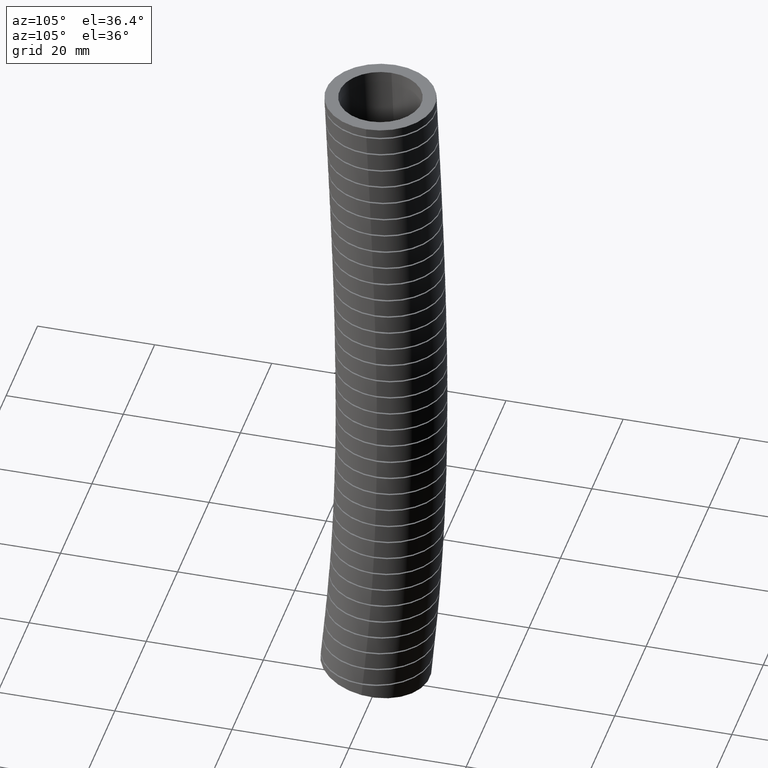
[diagram: clean part render]
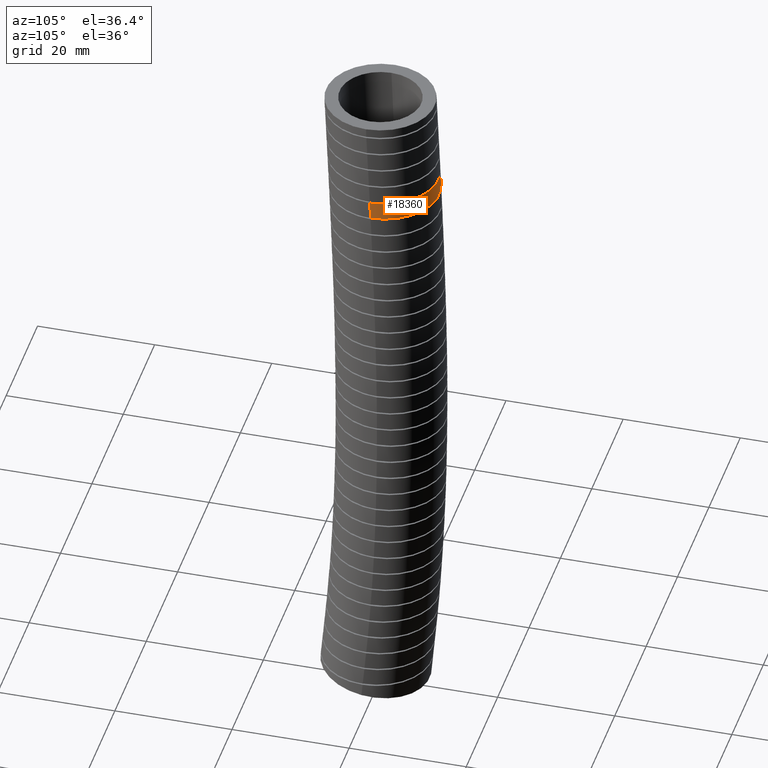
[diagram: same view with one face highlighted and labeled with its STEP entity id]
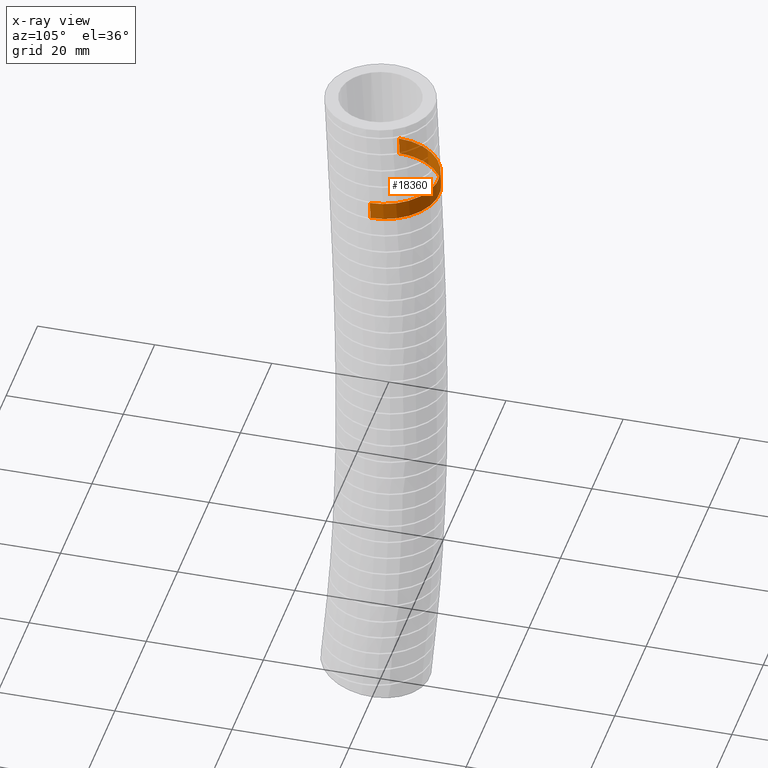
[diagram: x-ray of the same camera — body ghosted, the highlighted face saturated]
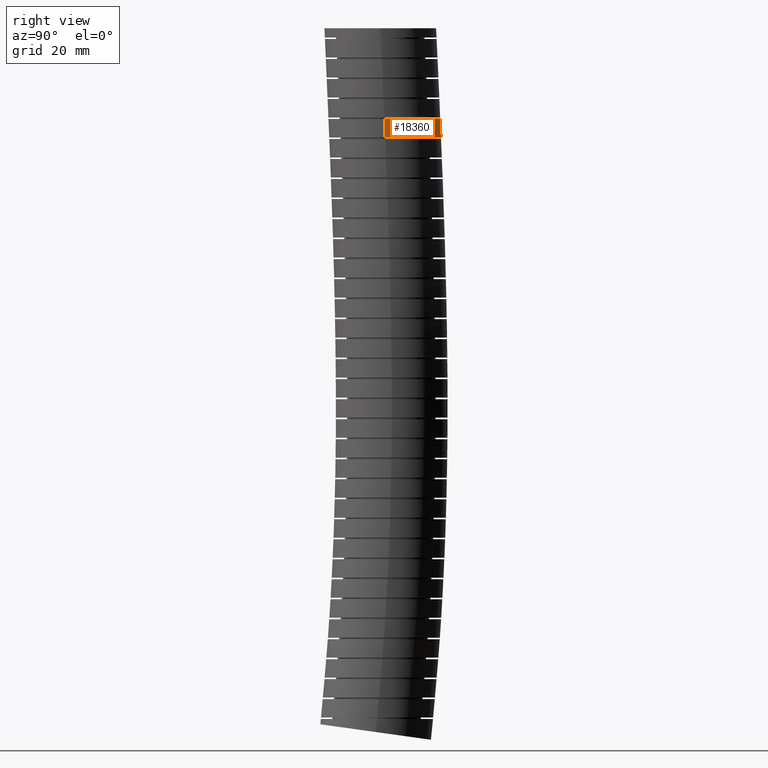
[diagram: same view with one face highlighted and labeled with its STEP entity id]
A machine part, auxiliary view. The second image highlights one B-rep face of the part: STEP entity #18360.
The next image is the same camera in x-ray: the body ghosted, the highlighted face saturated — about 25% of this face is hidden behind the body in this view.
A second angle (right view) of the same face is appended — the face is thin or edge-on in the first view.
In plain terms, the highlighted face is a freeform B-spline surface patch.
Its self-contained STEP definition (entity closure, byte-faithful):
#908 = VERTEX_POINT ( 'NONE', #7255 ) ;
#909 = VERTEX_POINT ( 'NONE', #7256 ) ;
#910 = EDGE_CURVE ( 'NONE', #912, #908, #7359, .T. ) ;
#912 = VERTEX_POINT ( 'NONE', #7354 ) ;
#916 = VERTEX_POINT ( 'NONE', #7377 ) ;
#6418 = EDGE_CURVE ( 'NONE', #909, #916, #10500, .T. ) ;
#7255 = CARTESIAN_POINT ( 'NONE',  ( -0.3649999999999999900, 0.03126465623229612200, -0.7093733101619895700 ) ) ;
#7256 = CARTESIAN_POINT ( 'NONE',  ( 0.3649999999999999900, 0.02621121832395991900, -0.5894886608622760300 ) ) ;
#7354 = CARTESIAN_POINT ( 'NONE',  ( -0.3650000000000000500, 0.02621121832395614100, -0.5894886608622315100 ) ) ;
#7355 = CARTESIAN_POINT ( 'NONE',  ( -0.3649999999999999900, 0.03126465623229612200, -0.7093733101619895700 ) ) ;
#7356 = CARTESIAN_POINT ( 'NONE',  ( -0.3649999999999999900, 0.02960436334437375700, -0.6694127585951066300 ) ) ;
#7357 = CARTESIAN_POINT ( 'NONE',  ( -0.3649999999999999900, 0.02791844007536636900, -0.6294511492345646900 ) ) ;
#7358 = CARTESIAN_POINT ( 'NONE',  ( -0.3650000000000000500, 0.02621121832395614100, -0.5894886608622315100 ) ) ;
#7359 = B_SPLINE_CURVE_WITH_KNOTS ( 'NONE', 3,
 ( #7358, #7357, #7356, #7355 ),
 .UNSPECIFIED., .F., .F.,
 ( 4, 4 ),
 ( 0.1287193705377788500, 0.1548996054933428100 ),
 .UNSPECIFIED. ) ;
#7377 = CARTESIAN_POINT ( 'NONE',  ( 0.3649999999999999900, 0.03126465623230066000, -0.7093733101620444100 ) ) ;
#10500 = B_SPLINE_CURVE_WITH_KNOTS ( 'NONE', 3,
 ( #10550, #10549, #10548, #10547 ),
 .UNSPECIFIED., .F., .F.,
 ( 4, 4 ),
 ( 0.1287193705377885600, 0.1548996054933548200 ),
 .UNSPECIFIED. ) ;
#10547 = CARTESIAN_POINT ( 'NONE',  ( 0.3649999999999999900, 0.03126465623230066000, -0.7093733101620444100 ) ) ;
#10548 = CARTESIAN_POINT ( 'NONE',  ( 0.3649999999999999900, 0.02960436334437589100, -0.6694127585951581400 ) ) ;
#10549 = CARTESIAN_POINT ( 'NONE',  ( 0.3649999999999999900, 0.02791844007536837000, -0.6294511492346126500 ) ) ;
#10550 = CARTESIAN_POINT ( 'NONE',  ( 0.3649999999999999900, 0.02621121832395991900, -0.5894886608622760300 ) ) ;
#15847 = FACE_OUTER_BOUND ( 'NONE', #18358, .T. ) ;
#15886 =( BOUNDED_SURFACE ( )  B_SPLINE_SURFACE ( 3, 3, ( 
 ( #15930, #15929, #15928, #15927, #15926, #15925 ),
 ( #15924, #15923, #15922, #15921, #15920, #15919 ),
 ( #15918, #15917, #15916, #15915, #15914, #15913 ),
 ( #15912, #15911, #15910, #15909, #15908, #15907 ),
 ( #15906, #15905, #15904, #15903, #15902, #15901 ),
 ( #15900, #15899, #15898, #15897, #15896, #15895 ),
 ( #15894, #15893, #15966, #15965, #15964, #15963 ) ),
 .UNSPECIFIED., .F., .F., .F. ) 
 B_SPLINE_SURFACE_WITH_KNOTS ( ( 4, 3, 4 ),
 ( 4, 1, 1, 4 ),
 ( 0.0000000000000000000, 0.5000000000000000000, 1.000000000000000000 ),
 ( 0.0000000000000000000, 0.5600000000000000500, 0.8748558840421495300, 1.000000000000000000 ),
 .UNSPECIFIED. ) 
 GEOMETRIC_REPRESENTATION_ITEM ( )  RATIONAL_B_SPLINE_SURFACE ( (
 ( 1.000000000000000000, 1.000000000000000000, 1.000000000000000000, 1.000000000000000000, 1.000000000000000000, 1.000000000000000000),
 ( 0.3333333333333333100, 0.3333333333333333100, 0.3333333333333333100, 0.3333333333333333100, 0.3333333333333333100, 0.3333333333333333100),
 ( 0.3333333333333333100, 0.3333333333333333100, 0.3333333333333333100, 0.3333333333333333100, 0.3333333333333333100, 0.3333333333333333100),
 ( 1.000000000000000000, 1.000000000000000000, 1.000000000000000000, 1.000000000000000000, 1.000000000000000000, 1.000000000000000000),
 ( 0.3333333333333333100, 0.3333333333333333100, 0.3333333333333333100, 0.3333333333333333100, 0.3333333333333333100, 0.3333333333333333100),
 ( 0.3333333333333333100, 0.3333333333333333100, 0.3333333333333333100, 0.3333333333333333100, 0.3333333333333333100, 0.3333333333333333100),
 ( 1.000000000000000000, 1.000000000000000000, 1.000000000000000000, 1.000000000000000000, 1.000000000000000000, 1.000000000000000000) ) ) 
 REPRESENTATION_ITEM ( '' )  SURFACE ( )  );
#15893 = CARTESIAN_POINT ( 'NONE',  ( 0.3649999999999999900, 0.03875770978777286900, -0.8548973581307141000 ) ) ;
#15894 = CARTESIAN_POINT ( 'NONE',  ( 0.3649999999999999900, 0.0000000000000000000, 0.0000000000000000000 ) ) ;
#15895 = CARTESIAN_POINT ( 'NONE',  ( 0.3649999999999999400, 0.6930017825107170900, -4.670838596213580600 ) ) ;
#15896 = CARTESIAN_POINT ( 'NONE',  ( 0.3649999999999999400, 0.7114620207083701700, -4.473997150209484600 ) ) ;
#15897 = CARTESIAN_POINT ( 'NONE',  ( 0.3649999999999999400, 0.7763672281549830500, -3.781913183025811700 ) ) ;
#15898 = CARTESIAN_POINT ( 'NONE',  ( 0.3649999999999999400, 0.8301834959050966600, -2.210314633867584100 ) ) ;
#15899 = CARTESIAN_POINT ( 'NONE',  ( 0.3649999999999999400, 0.7690999251777161900, -0.8626484434652025300 ) ) ;
#15900 = CARTESIAN_POINT ( 'NONE',  ( 0.3649999999999999400, 0.7299999999999998700, 0.0000000000000000000 ) ) ;
#15901 = CARTESIAN_POINT ( 'NONE',  ( -0.3649999999999999400, 0.6930017825107170900, -4.670838596213580600 ) ) ;
#15902 = CARTESIAN_POINT ( 'NONE',  ( -0.3649999999999998800, 0.7114620207083701700, -4.473997150209484600 ) ) ;
#15903 = CARTESIAN_POINT ( 'NONE',  ( -0.3649999999999998800, 0.7763672281549830500, -3.781913183025811700 ) ) ;
#15904 = CARTESIAN_POINT ( 'NONE',  ( -0.3649999999999999400, 0.8301834959050966600, -2.210314633867584100 ) ) ;
#15905 = CARTESIAN_POINT ( 'NONE',  ( -0.3649999999999999400, 0.7690999251777161900, -0.8626484434652025300 ) ) ;
#15906 = CARTESIAN_POINT ( 'NONE',  ( -0.3649999999999999400, 0.7299999999999998700, 0.0000000000000000000 ) ) ;
#15907 = CARTESIAN_POINT ( 'NONE',  ( -0.3649999999999999900, -0.02999999999999997100, -4.570000000000000300 ) ) ;
#15908 = CARTESIAN_POINT ( 'NONE',  ( -0.3649999999999999900, -0.01223079473036812700, -4.380045502980629600 ) ) ;
#15909 = CARTESIAN_POINT ( 'NONE',  ( -0.3649999999999999900, 0.05024477800268267700, -3.712175679067584200 ) ) ;
#15910 = CARTESIAN_POINT ( 'NONE',  ( -0.3649999999999999400, 0.09930665703747128300, -2.190454472439184600 ) ) ;
#15911 = CARTESIAN_POINT ( 'NONE',  ( -0.3649999999999999900, 0.03875770978777290400, -0.8548973581307141000 ) ) ;
#15912 = CARTESIAN_POINT ( 'NONE',  ( -0.3649999999999999900, 4.469960816887839200E-017, 0.0000000000000000000 ) ) ;
#15913 = CARTESIAN_POINT ( 'NONE',  ( -0.3650000000000001000, -0.7530017825107172500, -4.469161403786418200 ) ) ;
#15914 = CARTESIAN_POINT ( 'NONE',  ( -0.3650000000000001000, -0.7359236101691065700, -4.286093855751774500 ) ) ;
#15915 = CARTESIAN_POINT ( 'NONE',  ( -0.3650000000000001000, -0.6758776721496178000, -3.642438175109354900 ) ) ;
#15916 = CARTESIAN_POINT ( 'NONE',  ( -0.3650000000000001000, -0.6315701818301539000, -2.170594311010786800 ) ) ;
#15917 = CARTESIAN_POINT ( 'NONE',  ( -0.3650000000000001000, -0.6915845056021706600, -0.8471462727962260100 ) ) ;
#15918 = CARTESIAN_POINT ( 'NONE',  ( -0.3650000000000001000, -0.7299999999999998700, 0.0000000000000000000 ) ) ;
#15919 = CARTESIAN_POINT ( 'NONE',  ( 0.3649999999999999400, -0.7530017825107172500, -4.469161403786418200 ) ) ;
#15920 = CARTESIAN_POINT ( 'NONE',  ( 0.3649999999999999400, -0.7359236101691065700, -4.286093855751774500 ) ) ;
#15921 = CARTESIAN_POINT ( 'NONE',  ( 0.3649999999999999400, -0.6758776721496178000, -3.642438175109354900 ) ) ;
#15922 = CARTESIAN_POINT ( 'NONE',  ( 0.3649999999999999400, -0.6315701818301539000, -2.170594311010786800 ) ) ;
#15923 = CARTESIAN_POINT ( 'NONE',  ( 0.3649999999999999400, -0.6915845056021706600, -0.8471462727962260100 ) ) ;
#15924 = CARTESIAN_POINT ( 'NONE',  ( 0.3649999999999999400, -0.7299999999999998700, 0.0000000000000000000 ) ) ;
#15925 = CARTESIAN_POINT ( 'NONE',  ( 0.3649999999999999900, -0.03000000000000001300, -4.570000000000000300 ) ) ;
#15926 = CARTESIAN_POINT ( 'NONE',  ( 0.3649999999999999900, -0.01223079473036816800, -4.380045502980629600 ) ) ;
#15927 = CARTESIAN_POINT ( 'NONE',  ( 0.3649999999999999900, 0.05024477800268264300, -3.712175679067584200 ) ) ;
#15928 = CARTESIAN_POINT ( 'NONE',  ( 0.3649999999999999400, 0.09930665703747126900, -2.190454472439184600 ) ) ;
#15929 = CARTESIAN_POINT ( 'NONE',  ( 0.3649999999999999900, 0.03875770978777286900, -0.8548973581307141000 ) ) ;
#15930 = CARTESIAN_POINT ( 'NONE',  ( 0.3649999999999999900, 0.0000000000000000000, 0.0000000000000000000 ) ) ;
#15963 = CARTESIAN_POINT ( 'NONE',  ( 0.3649999999999999900, -0.03000000000000001300, -4.570000000000000300 ) ) ;
#15964 = CARTESIAN_POINT ( 'NONE',  ( 0.3649999999999999900, -0.01223079473036816800, -4.380045502980629600 ) ) ;
#15965 = CARTESIAN_POINT ( 'NONE',  ( 0.3649999999999999900, 0.05024477800268264300, -3.712175679067584200 ) ) ;
#15966 = CARTESIAN_POINT ( 'NONE',  ( 0.3649999999999999400, 0.09930665703747126900, -2.190454472439184600 ) ) ;
#15967 = CARTESIAN_POINT ( 'NONE',  ( 0.02375752942135493000, 0.3912202892086623600, -0.5894886608622312800 ) ) ;
#15968 = CARTESIAN_POINT ( 'NONE',  ( -0.02437183755444926100, 0.3911797886749993600, -0.5894886608622315100 ) ) ;
#15969 = CARTESIAN_POINT ( 'NONE',  ( -0.04806125841514628100, 0.3888032031406844500, -0.5894886608622312800 ) ) ;
#15970 = CARTESIAN_POINT ( 'NONE',  ( -0.08305179981515786700, 0.3818250352163292700, -0.5894886608622310600 ) ) ;
#15971 = CARTESIAN_POINT ( 'NONE',  ( -0.09462405241124016700, 0.3789259352511096200, -0.5894886608622310600 ) ) ;
#15972 = CARTESIAN_POINT ( 'NONE',  ( -0.1175812311875298200, 0.3719514821895130700, -0.5894886608622310600 ) ) ;
#15973 = CARTESIAN_POINT ( 'NONE',  ( -0.1289585673514485100, 0.3678694085650776600, -0.5894886608622309500 ) ) ;
#15974 = CARTESIAN_POINT ( 'NONE',  ( -0.1620557293897837700, 0.3541246868058974300, -0.5894886608622307300 ) ) ;
#15975 = CARTESIAN_POINT ( 'NONE',  ( -0.1830104860270325200, 0.3429067260693837200, -0.5894886608622310600 ) ) ;
#15976 = CARTESIAN_POINT ( 'NONE',  ( -0.2127813354661383400, 0.3230044918283795400, -0.5894886608622312800 ) ) ;
#15977 = CARTESIAN_POINT ( 'NONE',  ( -0.2224739212611364900, 0.3158135305144496600, -0.5894886608622316200 ) ) ;
#15978 = CARTESIAN_POINT ( 'NONE',  ( -0.2410307637883537500, 0.3005628820364233400, -0.5894886608622316200 ) ) ;
#15979 = CARTESIAN_POINT ( 'NONE',  ( -0.2498672007034686800, 0.2925354866226380600, -0.5894886608622312800 ) ) ;
#15980 = CARTESIAN_POINT ( 'NONE',  ( -0.2750875209368312500, 0.2672807115075176400, -0.5894886608622312800 ) ) ;
#15981 = CARTESIAN_POINT ( 'NONE',  ( -0.2901947771900103000, 0.2488919899044915700, -0.5894886608622312800 ) ) ;
#15982 = CARTESIAN_POINT ( 'NONE',  ( -0.3102173443799826100, 0.2189088422136190900, -0.5894886608622310600 ) ) ;
#15983 = CARTESIAN_POINT ( 'NONE',  ( -0.3164059494323411300, 0.2085642354051298900, -0.5894886608622314000 ) ) ;
#15984 = CARTESIAN_POINT ( 'NONE',  ( -0.3276405412485937600, 0.1875105156676724300, -0.5894886608622314000 ) ) ;
#15985 = CARTESIAN_POINT ( 'NONE',  ( -0.3377959500989141700, 0.1659995271574104300, -0.5894886608622306200 ) ) ;
#15986 = CARTESIAN_POINT ( 'NONE',  ( -0.3458185162886881500, 0.1435848157597769700, -0.5894886608622315100 ) ) ;
#15987 = CARTESIAN_POINT ( 'NONE',  ( -0.3527565405346172500, 0.1207105648962948500, -0.5894886608622314000 ) ) ;
#15988 = CARTESIAN_POINT ( 'NONE',  ( -0.3556938646187047800, 0.1089771657349924700, -0.5894886608622309500 ) ) ;
#15989 = CARTESIAN_POINT ( 'NONE',  ( -0.3626912429037877400, 0.07369712206511069800, -0.5894886608622310600 ) ) ;
#15990 = CARTESIAN_POINT ( 'NONE',  ( -0.3649999999999999400, 0.05002747436606127400, -0.5894886608622310600 ) ) ;
#15991 = CARTESIAN_POINT ( 'NONE',  ( -0.3650000000000000500, 0.02621121832395614100, -0.5894886608622315100 ) ) ;
#15992 = B_SPLINE_CURVE_WITH_KNOTS ( 'NONE', 3,
 ( #15991, #15990, #15989, #15988, #15987, #15986, #15985, #15984, #15983, #15982, #15981, #15980, #15979, #15978, #15977, #15976, #15975, #15974, #15973, #15972, #15971, #15970, #15969, #15968, #15967, #16050, #16049, #16048, #16047, #16046, #16045, #16044, #16043, #16042, #16041, #16040, #16039, #16038, #16037, #16036, #16035, #16034, #16033, #16032, #16031 ),
 .UNSPECIFIED., .F., .F.,
 ( 4, 2, 2, 1, 2, 2, 2, 2, 2, 2, 2, 2, 2, 2, 2, 2, 2, 2, 2, 2, 2, 2, 4 ),
 ( 0.02898494357270905600, 0.03079609438846444100, 0.03170166979634213300, 0.03260724520421982900, 0.03351282061209752400, 0.03441839601997522000, 0.03622954683573060400, 0.03713512224360830000, 0.03804069765148598800, 0.03985184846724137300, 0.04075742387511906200, 0.04166299928299675700, 0.04347415009875213500, 0.04528530091450751200, 0.04619087632238520800, 0.04709645173026288900, 0.04890760254601827400, 0.05071875336177365100, 0.05252990417752903500, 0.05343547958540672400, 0.05434105499328441300, 0.05615220580903979000, 0.05796335662479516100 ),
 .UNSPECIFIED. ) ;
#16031 = CARTESIAN_POINT ( 'NONE',  ( 0.3649999999999999900, 0.02621121832395991900, -0.5894886608622760300 ) ) ;
#16032 = CARTESIAN_POINT ( 'NONE',  ( 0.3650000000000001600, 0.05032182028331772700, -0.5894886608622760300 ) ) ;
#16033 = CARTESIAN_POINT ( 'NONE',  ( 0.3626340669215785100, 0.07418243055849556300, -0.5894886608622310600 ) ) ;
#16034 = CARTESIAN_POINT ( 'NONE',  ( 0.3531887823021224700, 0.1214056208542569600, -0.5894886608622312800 ) ) ;
#16035 = CARTESIAN_POINT ( 'NONE',  ( 0.3461900339087999900, 0.1442861587056487000, -0.5894886608622316200 ) ) ;
#16036 = CARTESIAN_POINT ( 'NONE',  ( 0.3325102559221446200, 0.1772138950582116400, -0.5894886608622316200 ) ) ;
#16037 = CARTESIAN_POINT ( 'NONE',  ( 0.3274122782556601100, 0.1879753806240957200, -0.5894886608622312800 ) ) ;
#16038 = CARTESIAN_POINT ( 'NONE',  ( 0.3161199281900519700, 0.2090614120445792300, -0.5894886608622312800 ) ) ;
#16039 = CARTESIAN_POINT ( 'NONE',  ( 0.3098878604402719400, 0.2194358348689839900, -0.5894886608622311700 ) ) ;
#16040 = CARTESIAN_POINT ( 'NONE',  ( 0.2898817610582873900, 0.2492910064893947800, -0.5894886608622309500 ) ) ;
#16041 = CARTESIAN_POINT ( 'NONE',  ( 0.2747684279358274000, 0.2676474526741007300, -0.5894886608622309500 ) ) ;
#16042 = CARTESIAN_POINT ( 'NONE',  ( 0.2410488178590134400, 0.3013176694817063000, -0.5894886608622309500 ) ) ;
#16043 = CARTESIAN_POINT ( 'NONE',  ( 0.2222447940798104900, 0.3167192744859384500, -0.5894886608622310600 ) ) ;
#16044 = CARTESIAN_POINT ( 'NONE',  ( 0.1825872192172869100, 0.3431475177820734700, -0.5894886608622311700 ) ) ;
#16045 = CARTESIAN_POINT ( 'NONE',  ( 0.1616136493845893000, 0.3543473461549929100, -0.5894886608622312800 ) ) ;
#16046 = CARTESIAN_POINT ( 'NONE',  ( 0.1284087623401388400, 0.3680775100184506800, -0.5894886608622312800 ) ) ;
#16047 = CARTESIAN_POINT ( 'NONE',  ( 0.1170090527022328600, 0.3721443251734140000, -0.5894886608622312800 ) ) ;
#16048 = CARTESIAN_POINT ( 'NONE',  ( 0.09410777123703957500, 0.3790628433513763600, -0.5894886608622310600 ) ) ;
#16049 = CARTESIAN_POINT ( 'NONE',  ( 0.08255176107283364300, 0.3819411889507232600, -0.5894886608622317300 ) ) ;
#16050 = CARTESIAN_POINT ( 'NONE',  ( 0.04757361448057416400, 0.3888665209237491800, -0.5894886608622317300 ) ) ;
#16317 = B_SPLINE_CURVE_WITH_KNOTS ( 'NONE', 3,
 ( #16386, #16385, #16384, #16383, #16382, #16381, #16380, #16379, #16378, #16377, #16376, #16375, #16374, #16373, #16372, #16371, #16370, #16369, #16368, #16367, #16366, #16365, #16364, #16363, #16362, #16361, #16360, #16359, #16358, #16357, #16356, #16355, #16354, #16353, #16352, #16351, #16350, #16349, #16348, #16347, #16346, #16345, #16344, #16343, #16342 ),
 .UNSPECIFIED., .F., .F.,
 ( 4, 2, 2, 2, 2, 2, 2, 2, 2, 2, 2, 2, 2, 2, 2, 2, 1, 2, 2, 2, 2, 2, 4 ),
 ( 0.0000000000000000000, 0.0009154544744489195000, 0.001830908948897839000, 0.003661817897795679700, 0.005492726846693520700, 0.007323635795591359500, 0.008239090270040277600, 0.009154544744489198300, 0.01098545369338703100, 0.01281636264228486700, 0.01373181711673378300, 0.01464727159118269800, 0.01647818054008053400, 0.01830908948897836900, 0.02013999843787620300, 0.02105545291232512400, 0.02197090738677403800, 0.02288636186122295500, 0.02380181633567187200, 0.02563272528456970300, 0.02654817975901861700, 0.02746363423346753800, 0.02929454318236536500 ),
 .UNSPECIFIED. ) ;
#16342 = CARTESIAN_POINT ( 'NONE',  ( -0.3649999999999999900, 0.03126465623229612200, -0.7093733101619895700 ) ) ;
#16343 = CARTESIAN_POINT ( 'NONE',  ( -0.3649999999999999900, 0.05517185689773158900, -0.7093733101619895700 ) ) ;
#16344 = CARTESIAN_POINT ( 'NONE',  ( -0.3626733481010274200, 0.07882753050902410700, -0.7093733101619890100 ) ) ;
#16345 = CARTESIAN_POINT ( 'NONE',  ( -0.3557135807648619300, 0.1139359328452386000, -0.7093733101619890100 ) ) ;
#16346 = CARTESIAN_POINT ( 'NONE',  ( -0.3527951262440269200, 0.1256269932049950400, -0.7093733101619904600 ) ) ;
#16347 = CARTESIAN_POINT ( 'NONE',  ( -0.3458214030723326100, 0.1486347569758828300, -0.7093733101619903400 ) ) ;
#16348 = CARTESIAN_POINT ( 'NONE',  ( -0.3417937455604339000, 0.1598806846550517900, -0.7093733101619897900 ) ) ;
#16349 = CARTESIAN_POINT ( 'NONE',  ( -0.3281364859289393500, 0.1928675486144353600, -0.7093733101619895700 ) ) ;
#16350 = CARTESIAN_POINT ( 'NONE',  ( -0.3169475886406120100, 0.2138647168146392000, -0.7093733101619893500 ) ) ;
#16351 = CARTESIAN_POINT ( 'NONE',  ( -0.2969533537483338700, 0.2438289074423096200, -0.7093733101619895700 ) ) ;
#16352 = CARTESIAN_POINT ( 'NONE',  ( -0.2897626297930077100, 0.2535267083902764700, -0.7093733101619893500 ) ) ;
#16353 = CARTESIAN_POINT ( 'NONE',  ( -0.2746179539244879600, 0.2719864158776120800, -0.7093733101619895700 ) ) ;
#16354 = CARTESIAN_POINT ( 'NONE',  ( -0.2586406689230144100, 0.2896184003754314600, -0.7093733101619897900 ) ) ;
#16355 = CARTESIAN_POINT ( 'NONE',  ( -0.2410207949634590500, 0.3056174354025818500, -0.7093733101619892300 ) ) ;
#16356 = CARTESIAN_POINT ( 'NONE',  ( -0.2225671409936911000, 0.3207875834342181500, -0.7093733101619895700 ) ) ;
#16357 = CARTESIAN_POINT ( 'NONE',  ( -0.2128663802789092000, 0.3279942810497735700, -0.7093733101619896800 ) ) ;
#16358 = CARTESIAN_POINT ( 'NONE',  ( -0.1829423937597304000, 0.3480033975174722800, -0.7093733101619895700 ) ) ;
#16359 = CARTESIAN_POINT ( 'NONE',  ( -0.1619616339057574400, 0.3592128005631851600, -0.7093733101619887900 ) ) ;
#16360 = CARTESIAN_POINT ( 'NONE',  ( -0.1179859856615544700, 0.3774722484328516500, -0.7093733101619890100 ) ) ;
#16361 = CARTESIAN_POINT ( 'NONE',  ( -0.09473938138835984200, 0.3845441824744912900, -0.7093733101619893500 ) ) ;
#16362 = CARTESIAN_POINT ( 'NONE',  ( -0.04795734543584183300, 0.3938683453195676600, -0.7093733101619892300 ) ) ;
#16363 = CARTESIAN_POINT ( 'NONE',  ( -0.02430297817952009600, 0.3962219634494733000, -0.7093733101619887900 ) ) ;
#16364 = CARTESIAN_POINT ( 'NONE',  ( 0.01157702896817030000, 0.3962596085220259100, -0.7093733101619887900 ) ) ;
#16365 = CARTESIAN_POINT ( 'NONE',  ( 0.02366556281420770900, 0.3956762246263784700, -0.7093733101619893500 ) ) ;
#16366 = CARTESIAN_POINT ( 'NONE',  ( 0.04751043971474156600, 0.3933402957260577800, -0.7093733101619892300 ) ) ;
#16367 = CARTESIAN_POINT ( 'NONE',  ( 0.05930128832906261800, 0.3915941285071881700, -0.7093733101619885700 ) ) ;
#16368 = CARTESIAN_POINT ( 'NONE',  ( 0.09428793823171580100, 0.3846600087998186500, -0.7093733101619886800 ) ) ;
#16369 = CARTESIAN_POINT ( 'NONE',  ( 0.1171016371995924300, 0.3777931073405840800, -0.7093733101619895700 ) ) ;
#16370 = CARTESIAN_POINT ( 'NONE',  ( 0.1616644042352707000, 0.3593813402795405500, -0.7093733101619896800 ) ) ;
#16371 = CARTESIAN_POINT ( 'NONE',  ( 0.1826782838224586000, 0.3481391275545085400, -0.7093733101619893500 ) ) ;
#16372 = CARTESIAN_POINT ( 'NONE',  ( 0.2123547781771344400, 0.3283561488414341000, -0.7093733101619896800 ) ) ;
#16373 = CARTESIAN_POINT ( 'NONE',  ( 0.2219385022425533500, 0.3212710823831985100, -0.7093733101619895700 ) ) ;
#16374 = CARTESIAN_POINT ( 'NONE',  ( 0.2404751117848092400, 0.3060972627011788200, -0.7093733101619895700 ) ) ;
#16375 = CARTESIAN_POINT ( 'NONE',  ( 0.2494506826892686500, 0.2979773073665185600, -0.7093733101619896800 ) ) ;
#16376 = CARTESIAN_POINT ( 'NONE',  ( 0.2748435608588560300, 0.2726208156158390600, -0.7093733101619896800 ) ) ;
#16377 = CARTESIAN_POINT ( 'NONE',  ( 0.2899376183667487500, 0.2542561503846925100, -0.7093733101619887900 ) ) ;
#16378 = CARTESIAN_POINT ( 'NONE',  ( 0.3164908852489510800, 0.2146333754826599800, -0.7093733101619890100 ) ) ;
#16379 = CARTESIAN_POINT ( 'NONE',  ( 0.3279663768205796600, 0.1932136551412666800, -0.7093733101619892300 ) ) ;
#16380 = CARTESIAN_POINT ( 'NONE',  ( 0.3462276552558791700, 0.1492350524006845500, -0.7093733101619893500 ) ) ;
#16381 = CARTESIAN_POINT ( 'NONE',  ( 0.3531753310278062900, 0.1264859285668289400, -0.7093733101619887900 ) ) ;
#16382 = CARTESIAN_POINT ( 'NONE',  ( 0.3602455559767823700, 0.09119576224674368100, -0.7093733101619887900 ) ) ;
#16383 = CARTESIAN_POINT ( 'NONE',  ( 0.3620325870357233300, 0.07923928848277066200, -0.7093733101619892300 ) ) ;
#16384 = CARTESIAN_POINT ( 'NONE',  ( 0.3644041433671915700, 0.05532595419985228400, -0.7093733101619895700 ) ) ;
#16385 = CARTESIAN_POINT ( 'NONE',  ( 0.3649999999999999400, 0.04332013068148878700, -0.7093733101620443000 ) ) ;
#16386 = CARTESIAN_POINT ( 'NONE',  ( 0.3649999999999999900, 0.03126465623230066000, -0.7093733101620444100 ) ) ;
#18356 = ORIENTED_EDGE ( 'NONE', *, *, #910, .F. ) ;
#18357 = ORIENTED_EDGE ( 'NONE', *, *, #18362, .T. ) ;
#18358 = EDGE_LOOP ( 'NONE', ( #18356, #18357, #18378, #18382 ) ) ;
#18360 = ADVANCED_FACE ( 'NONE', ( #15847 ), #15886, .T. ) ;
#18362 = EDGE_CURVE ( 'NONE', #912, #909, #15992, .T. ) ;
#18378 = ORIENTED_EDGE ( 'NONE', *, *, #6418, .T. ) ;
#18382 = ORIENTED_EDGE ( 'NONE', *, *, #18383, .T. ) ;
#18383 = EDGE_CURVE ( 'NONE', #916, #908, #16317, .T. ) ;